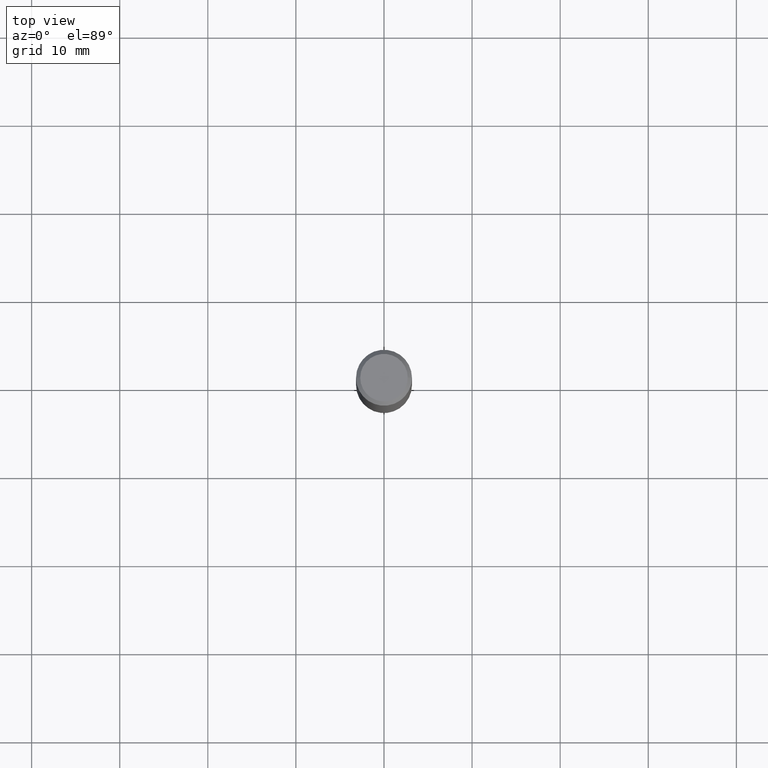
[diagram: clean part render]
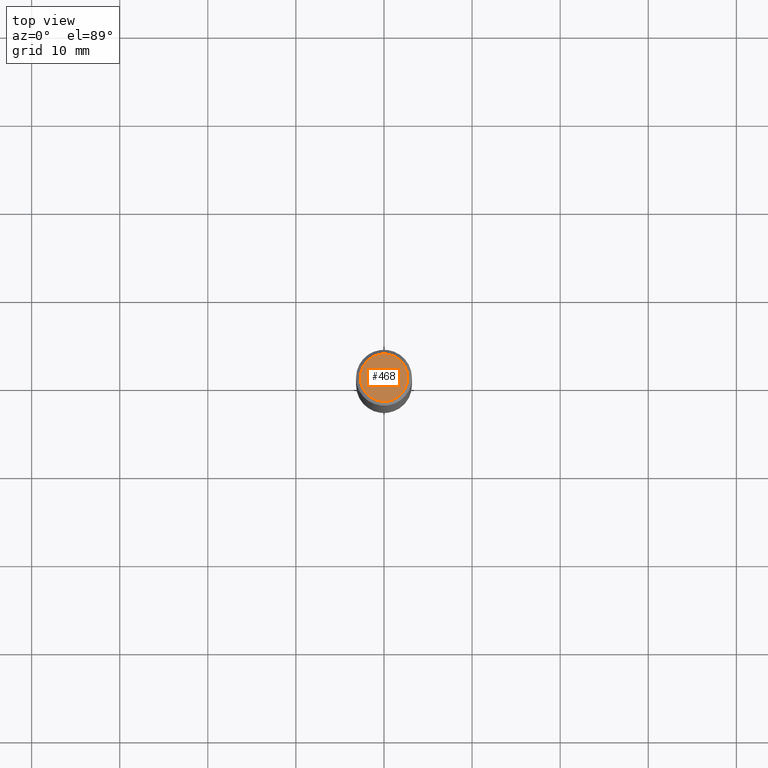
[diagram: same view with one face highlighted and labeled with its STEP entity id]
A machine part, top view. The second image highlights one B-rep face of the part: STEP entity #468.
In plain terms, the highlighted planar face has unit normal (0, -0, -1).
Its self-contained STEP definition (entity closure, byte-faithful):
#28 = CARTESIAN_POINT ( 'NONE',  ( -1.591006383764330940E-46, 2.271535455632768948E-32, 6.505936120470318766E-18 ) ) ;
#41 = DIRECTION ( 'NONE',  ( -1.000000000000000000, 6.982962677686265922E-15, -4.876176775795935793E-29 ) ) ;
#49 = VERTEX_POINT ( 'NONE', #198 ) ;
#56 = CARTESIAN_POINT ( 'NONE',  ( -1.591006383764330940E-46, 2.271535455632768948E-32, 6.505936120470318766E-18 ) ) ;
#78 = DIRECTION ( 'NONE',  ( -2.445468806185136597E-29, 3.491481338843145583E-15, 1.000000000000000000 ) ) ;
#86 = EDGE_CURVE ( 'NONE', #106, #49, #416, .T. ) ;
#106 = VERTEX_POINT ( 'NONE', #442 ) ;
#113 = AXIS2_PLACEMENT_3D ( 'NONE', #380, #465, #41 ) ;
#140 = ORIENTED_EDGE ( 'NONE', *, *, #369, .T. ) ;
#198 = CARTESIAN_POINT ( 'NONE',  ( -0.1062499999999999972, 7.746724220558198188E-16, 6.505936120465015526E-18 ) ) ;
#226 = FACE_OUTER_BOUND ( 'NONE', #311, .T. ) ;
#243 = AXIS2_PLACEMENT_3D ( 'NONE', #56, #356, #274 ) ;
#259 = ORIENTED_EDGE ( 'NONE', *, *, #86, .T. ) ;
#269 = PLANE ( 'NONE',  #113 ) ;
#274 = DIRECTION ( 'NONE',  ( 1.000000000000000000, -6.982962677686266711E-15, 4.875930095424100059E-29 ) ) ;
#311 = EDGE_LOOP ( 'NONE', ( #140, #259 ) ) ;
#334 = AXIS2_PLACEMENT_3D ( 'NONE', #28, #78, #405 ) ;
#356 = DIRECTION ( 'NONE',  ( -2.445468806185136597E-29, 3.491481338843145583E-15, 1.000000000000000000 ) ) ;
#369 = EDGE_CURVE ( 'NONE', #49, #106, #417, .T. ) ;
#380 = CARTESIAN_POINT ( 'NONE',  ( -7.955031918821654702E-47, 1.135767727816384474E-32, 3.252968060235159383E-18 ) ) ;
#405 = DIRECTION ( 'NONE',  ( 1.000000000000000000, -6.982962677686266711E-15, 4.875930095424100059E-29 ) ) ;
#416 = CIRCLE ( 'NONE', #243, 0.1062499999999999972 ) ;
#417 = CIRCLE ( 'NONE', #334, 0.1062499999999999972 ) ;
#442 = CARTESIAN_POINT ( 'NONE',  ( 0.1062499999999999972, -8.259777185439879685E-16, 6.505936120475800733E-18 ) ) ;
#465 = DIRECTION ( 'NONE',  ( 2.438088387897960049E-29, -3.491481338843145188E-15, -1.000000000000000000 ) ) ;
#468 = ADVANCED_FACE ( 'NONE', ( #226 ), #269, .F. ) ;